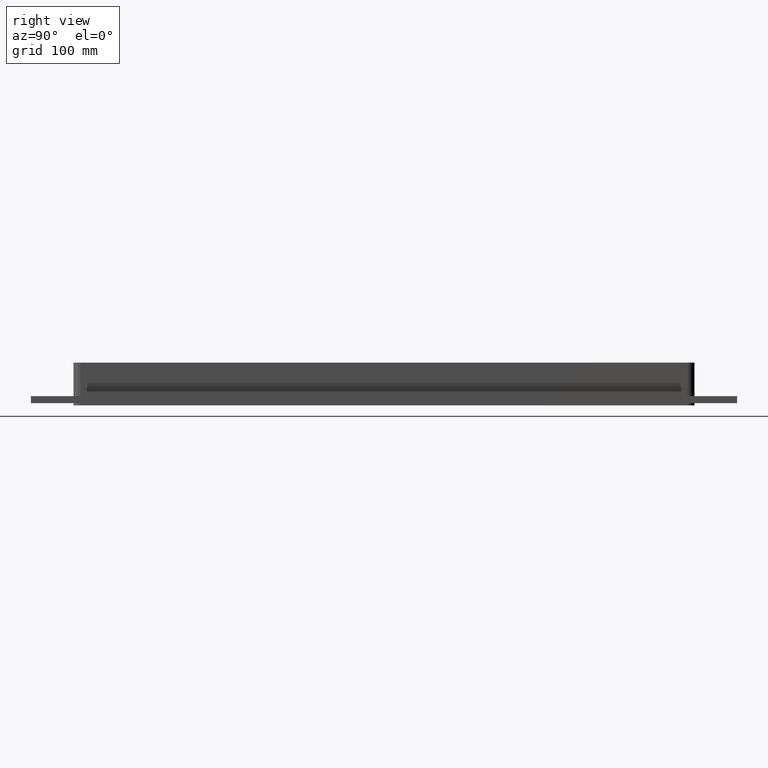
[diagram: clean part render]
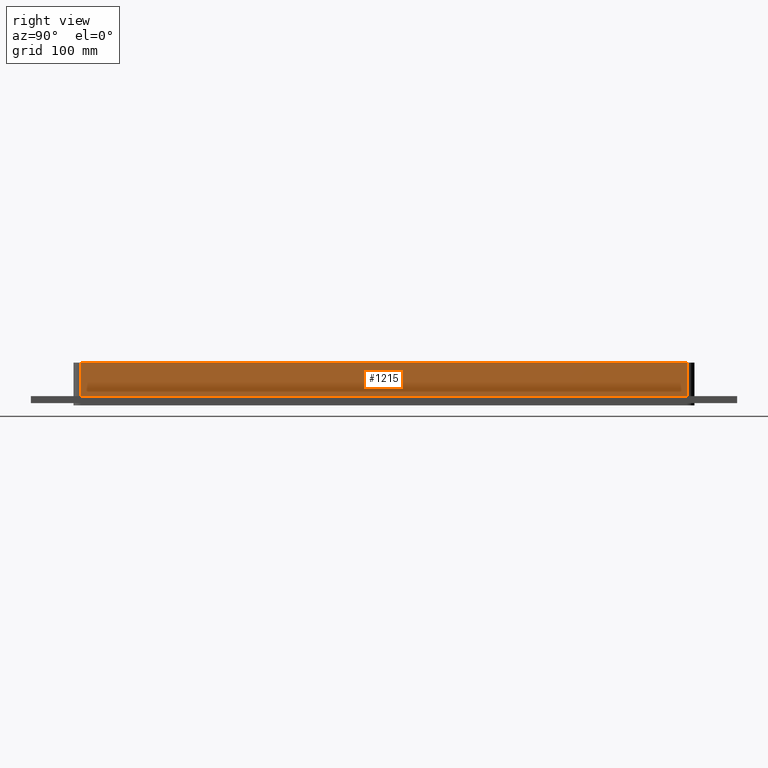
[diagram: same view with one face highlighted and labeled with its STEP entity id]
A machine part, right view. The second image highlights one B-rep face of the part: STEP entity #1215.
In plain terms, the highlighted planar face has unit normal (1, 0, 0).
Its self-contained STEP definition (entity closure, byte-faithful):
#885=CARTESIAN_POINT('',(70.249999999999915,427.0,-17.0));
#886=VERTEX_POINT('',#885);
#896=CARTESIAN_POINT('',(70.250000000000057,-427.0,-17.0));
#897=VERTEX_POINT('',#896);
#898=CARTESIAN_POINT('',(70.249999999999972,-427.0,-17.000000000000011));
#899=DIRECTION('',(0.0,1.0,0.0));
#900=VECTOR('',#899,854.0);
#901=LINE('',#898,#900);
#902=EDGE_CURVE('',#897,#886,#901,.T.);
#1142=CARTESIAN_POINT('',(70.249999999999986,-426.99999999999989,30.0));
#1143=VERTEX_POINT('',#1142);
#1144=CARTESIAN_POINT('',(70.249999999999986,-426.99999999999989,-17.0));
#1145=DIRECTION('',(0.0,0.0,1.0));
#1146=VECTOR('',#1145,47.0);
#1147=LINE('',#1144,#1146);
#1148=EDGE_CURVE('',#897,#1143,#1147,.T.);
#1192=CARTESIAN_POINT('',(70.249999999999986,-436.99999999999989,0.0));
#1193=DIRECTION('',(1.0,0.0,0.0));
#1194=DIRECTION('',(0.0,1.0,0.0));
#1195=AXIS2_PLACEMENT_3D('',#1192,#1193,#1194);
#1196=PLANE('',#1195);
#1197=ORIENTED_EDGE('',*,*,#902,.T.);
#1198=CARTESIAN_POINT('',(70.249999999999844,427.00000000000017,30.0));
#1199=VERTEX_POINT('',#1198);
#1200=CARTESIAN_POINT('',(70.249999999999844,427.00000000000011,30.0));
#1201=DIRECTION('',(0.0,0.0,-1.0));
#1202=VECTOR('',#1201,47.0);
#1203=LINE('',#1200,#1202);
#1204=EDGE_CURVE('',#1199,#886,#1203,.T.);
#1205=ORIENTED_EDGE('',*,*,#1204,.F.);
#1206=CARTESIAN_POINT('',(70.249999999999986,-426.99999999999989,30.0));
#1207=DIRECTION('',(0.0,1.0,0.0));
#1208=VECTOR('',#1207,854.0);
#1209=LINE('',#1206,#1208);
#1210=EDGE_CURVE('',#1143,#1199,#1209,.T.);
#1211=ORIENTED_EDGE('',*,*,#1210,.F.);
#1212=ORIENTED_EDGE('',*,*,#1148,.F.);
#1213=EDGE_LOOP('',(#1197,#1205,#1211,#1212));
#1214=FACE_OUTER_BOUND('',#1213,.T.);
#1215=ADVANCED_FACE('',(#1214),#1196,.T.);